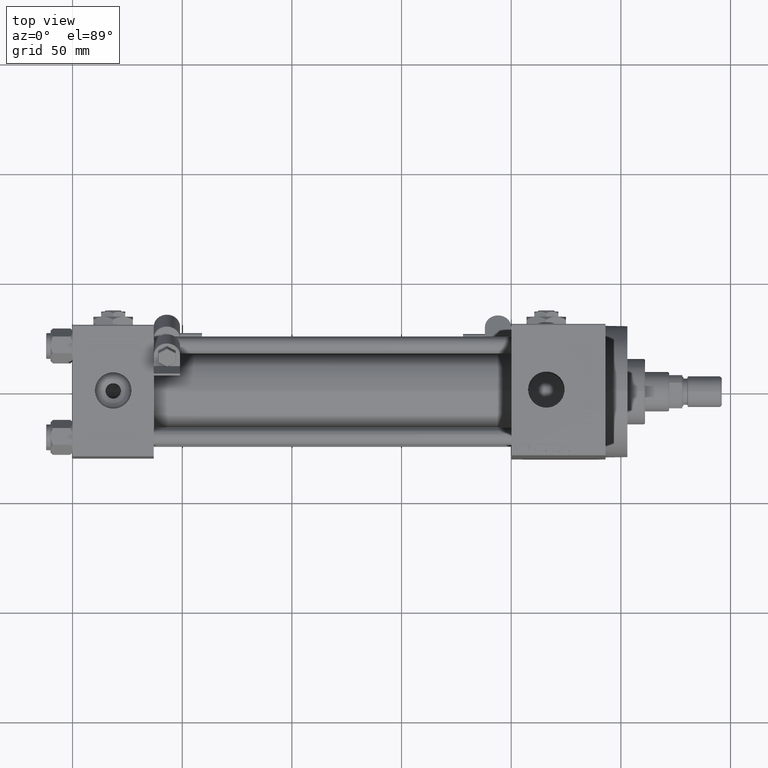
[diagram: clean part render]
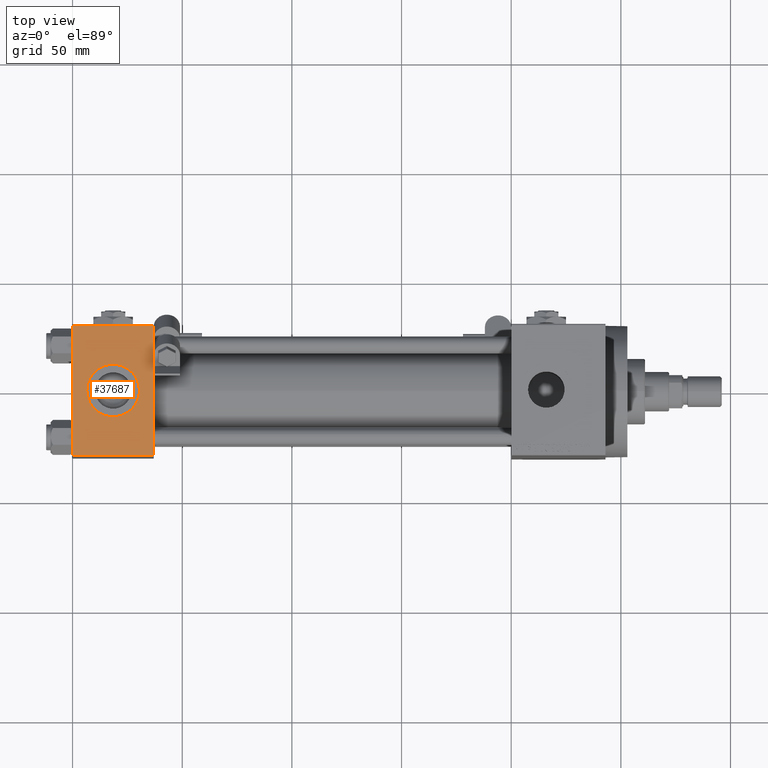
[diagram: same view with one face highlighted and labeled with its STEP entity id]
A machine part, top view. The second image highlights one B-rep face of the part: STEP entity #37687.
In plain terms, the highlighted planar face has unit normal (0, 0, -1).
Its self-contained STEP definition (entity closure, byte-faithful):
#741 = LINE ( 'NONE', #15641, #44786 ) ;
#1172 = EDGE_CURVE ( 'NONE', #40564, #22601, #741, .T. ) ;
#2471 = PLANE ( 'NONE',  #32605 ) ;
#3228 = DIRECTION ( 'NONE',  ( 1.000000000000000000, 0.000000000000000000, 0.000000000000000000 ) ) ;
#3327 = CIRCLE ( 'NONE', #23845, 12.00000000000000000 ) ;
#4904 = EDGE_LOOP ( 'NONE', ( #18331, #42727, #27322, #33769 ) ) ;
#5121 = CARTESIAN_POINT ( 'NONE',  ( 18.50000000000000000, -3.469446951953614978E-15, 29.99999999999999645 ) ) ;
#5215 = VERTEX_POINT ( 'NONE', #10214 ) ;
#5757 = CARTESIAN_POINT ( 'NONE',  ( 0.000000000000000000, 29.49999999999999289, 30.00000000000000000 ) ) ;
#8033 = ORIENTED_EDGE ( 'NONE', *, *, #20172, .F. ) ;
#8473 = CARTESIAN_POINT ( 'NONE',  ( 37.00000000000000000, 29.99999999999999289, 30.00000000000000000 ) ) ;
#8898 = EDGE_CURVE ( 'NONE', #19676, #40564, #36707, .T. ) ;
#10214 = CARTESIAN_POINT ( 'NONE',  ( 6.499999999999997335, -1.999870792976790833E-15, 29.99999999999999645 ) ) ;
#11522 = DIRECTION ( 'NONE',  ( 0.000000000000000000, -1.000000000000000000, -1.156482317317871725E-16 ) ) ;
#12030 = CARTESIAN_POINT ( 'NONE',  ( 37.00000000000000000, -29.50000000000000000, 29.99999999999999289 ) ) ;
#13795 = CARTESIAN_POINT ( 'NONE',  ( 30.50000000000000000, -3.469446951953614978E-15, 29.99999999999999645 ) ) ;
#14533 = DIRECTION ( 'NONE',  ( 0.000000000000000000, 1.000000000000000000, 1.156482317317871725E-16 ) ) ;
#14614 = EDGE_CURVE ( 'NONE', #22601, #40601, #23629, .T. ) ;
#15276 = FACE_OUTER_BOUND ( 'NONE', #4904, .T. ) ;
#15379 = DIRECTION ( 'NONE',  ( 1.000000000000000000, 0.000000000000000000, 0.000000000000000000 ) ) ;
#15554 = VECTOR ( 'NONE', #15379, 1000.000000000000000 ) ;
#15641 = CARTESIAN_POINT ( 'NONE',  ( 0.000000000000000000, 29.99999999999999289, 30.00000000000000000 ) ) ;
#15690 = CARTESIAN_POINT ( 'NONE',  ( 0.000000000000000000, -29.49999999999998579, 29.99999999999999289 ) ) ;
#16548 = AXIS2_PLACEMENT_3D ( 'NONE', #5121, #16927, #32613 ) ;
#16927 = DIRECTION ( 'NONE',  ( 0.000000000000000000, 0.000000000000000000, 1.000000000000000000 ) ) ;
#17922 = VECTOR ( 'NONE', #40820, 1000.000000000000000 ) ;
#18331 = ORIENTED_EDGE ( 'NONE', *, *, #1172, .T. ) ;
#18566 = CARTESIAN_POINT ( 'NONE',  ( 37.00000000000000000, 29.49999999999999289, 30.00000000000000000 ) ) ;
#19676 = VERTEX_POINT ( 'NONE', #18566 ) ;
#20172 = EDGE_CURVE ( 'NONE', #5215, #23165, #38721, .T. ) ;
#20796 = CARTESIAN_POINT ( 'NONE',  ( 0.000000000000000000, 29.49999999999999289, 30.00000000000000000 ) ) ;
#22601 = VERTEX_POINT ( 'NONE', #15690 ) ;
#22769 = CARTESIAN_POINT ( 'NONE',  ( 37.00000000000000000, 29.99999999999999289, 30.00000000000000000 ) ) ;
#23165 = VERTEX_POINT ( 'NONE', #13795 ) ;
#23552 = ORIENTED_EDGE ( 'NONE', *, *, #44878, .F. ) ;
#23629 = LINE ( 'NONE', #12030, #15554 ) ;
#23845 = AXIS2_PLACEMENT_3D ( 'NONE', #45147, #37941, #3228 ) ;
#27123 = FACE_BOUND ( 'NONE', #31529, .T. ) ;
#27322 = ORIENTED_EDGE ( 'NONE', *, *, #41325, .F. ) ;
#27560 = CARTESIAN_POINT ( 'NONE',  ( 37.00000000000000000, -29.49999999999998579, 29.99999999999999289 ) ) ;
#27841 = VECTOR ( 'NONE', #44923, 1000.000000000000000 ) ;
#30236 = DIRECTION ( 'NONE',  ( 0.000000000000000000, 1.156482317317871725E-16, -1.000000000000000000 ) ) ;
#31529 = EDGE_LOOP ( 'NONE', ( #23552, #8033 ) ) ;
#32605 = AXIS2_PLACEMENT_3D ( 'NONE', #22769, #30236, #14533 ) ;
#32613 = DIRECTION ( 'NONE',  ( 1.000000000000000000, 0.000000000000000000, 0.000000000000000000 ) ) ;
#33769 = ORIENTED_EDGE ( 'NONE', *, *, #8898, .T. ) ;
#36707 = LINE ( 'NONE', #20796, #17922 ) ;
#37687 = ADVANCED_FACE ( 'NONE', ( #27123, #15276 ), #2471, .F. ) ;
#37941 = DIRECTION ( 'NONE',  ( 0.000000000000000000, 0.000000000000000000, 1.000000000000000000 ) ) ;
#38721 = CIRCLE ( 'NONE', #16548, 12.00000000000000000 ) ;
#40564 = VERTEX_POINT ( 'NONE', #5757 ) ;
#40601 = VERTEX_POINT ( 'NONE', #27560 ) ;
#40820 = DIRECTION ( 'NONE',  ( -1.000000000000000000, 0.000000000000000000, 0.000000000000000000 ) ) ;
#41325 = EDGE_CURVE ( 'NONE', #19676, #40601, #43701, .T. ) ;
#42727 = ORIENTED_EDGE ( 'NONE', *, *, #14614, .T. ) ;
#43701 = LINE ( 'NONE', #8473, #27841 ) ;
#44786 = VECTOR ( 'NONE', #11522, 1000.000000000000000 ) ;
#44878 = EDGE_CURVE ( 'NONE', #23165, #5215, #3327, .T. ) ;
#44923 = DIRECTION ( 'NONE',  ( 0.000000000000000000, -1.000000000000000000, -1.156482317317871725E-16 ) ) ;
#45147 = CARTESIAN_POINT ( 'NONE',  ( 18.50000000000000000, -3.469446951953614978E-15, 29.99999999999999645 ) ) ;